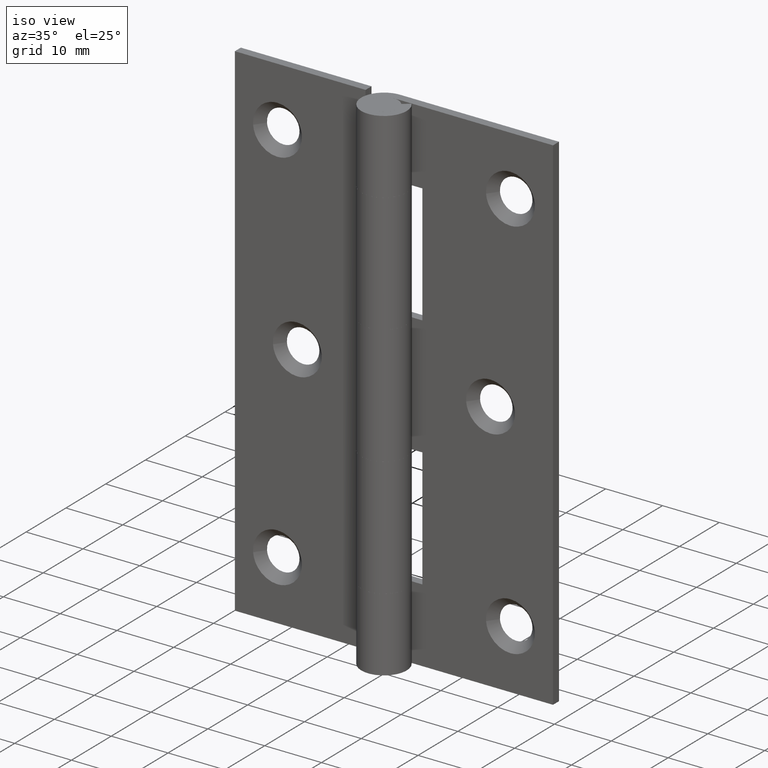
[diagram: clean part render]
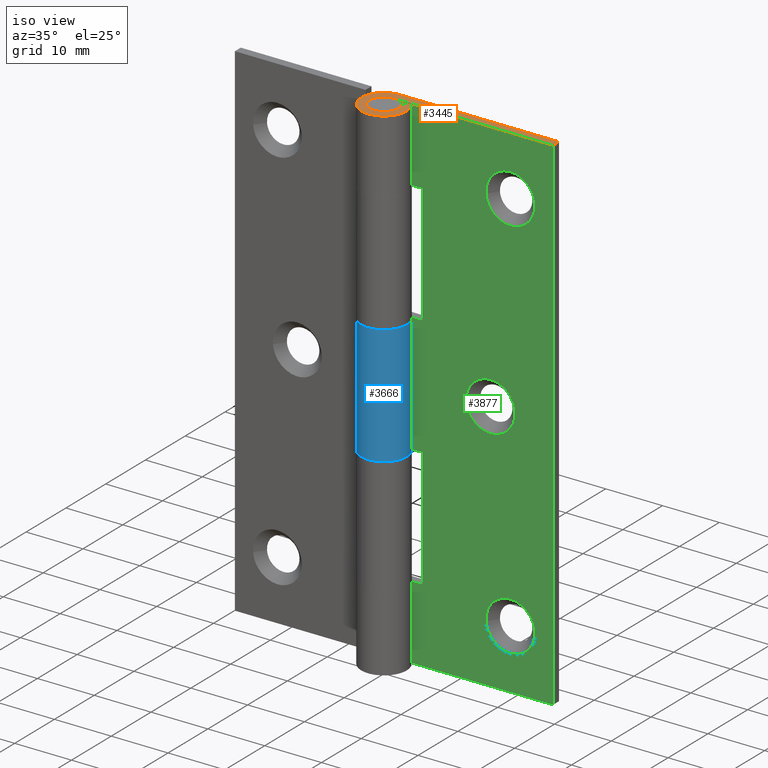
[diagram: same view with three faces highlighted in distinct colors, each labeled with its STEP entity id]
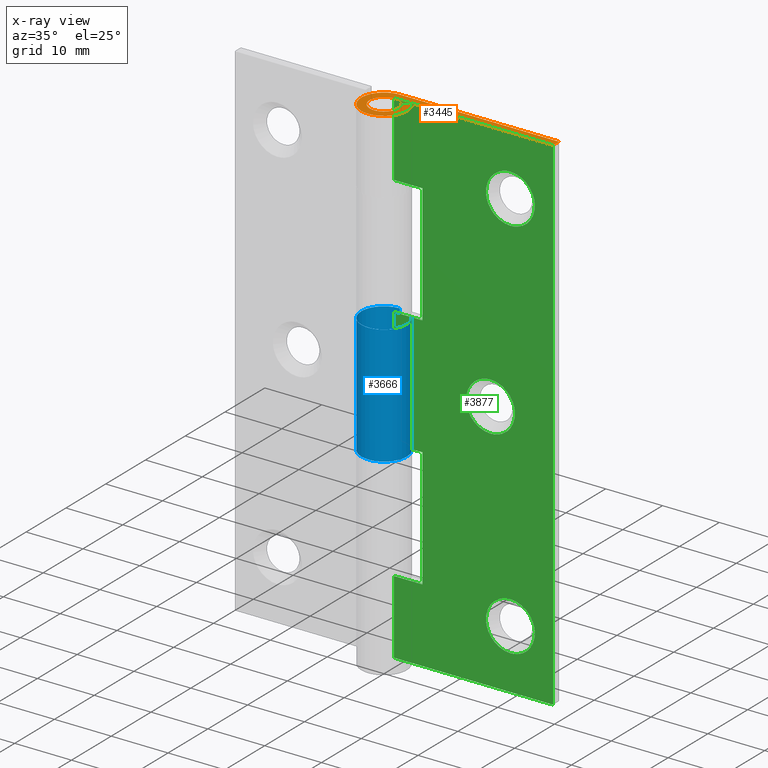
[diagram: x-ray of the same camera — body ghosted, the three highlighted faces saturated]
A machine part, iso view with three faces highlighted in distinct colors.
The next image is the same camera in x-ray (body ghosted, the three faces saturated) — at least one of them is partly hidden behind the body in this view.
Their STEP definitions:

[orange] entity #3445 — the highlighted face is a freeform B-spline surface patch.
#3368=CARTESIAN_POINT('',(-5.594925969266946,-4.385704570387422,89.000008000000008));
#3369=CARTESIAN_POINT('',(29.598235526677652,-4.385704570387422,89.000008000000008));
#3370=CARTESIAN_POINT('',(-5.594925969266946,4.398939142562097,89.000008000000008));
#3371=CARTESIAN_POINT('',(29.598235526677652,4.398939142562097,89.000008000000008));
#3372=B_SPLINE_SURFACE_WITH_KNOTS('',1,1,((#3368,#3370),(#3369,#3371)),.UNSPECIFIED.,.F.,.F.,.U.,(2,2),(2,2),(0.0,35.193161495944587),(0.0,8.784643712949519),.UNSPECIFIED.);
#3373=CARTESIAN_POINT('',(-4.592274E-016,2.500000000000000,89.000008000000008));
#3374=VERTEX_POINT('',#3373);
#3375=CARTESIAN_POINT('',(28.0,2.500000000000000,89.000008000000008));
#3376=VERTEX_POINT('',#3375);
#3377=CARTESIAN_POINT('',(-4.592274E-016,2.500000000000000,89.000008000000008));
#3378=CARTESIAN_POINT('',(28.0,2.500000000000000,89.000008000000008));
#3379=QUASI_UNIFORM_CURVE('',1,(#3377,#3378),.UNSPECIFIED.,.F.,.U.);
#3380=EDGE_CURVE('',#3374,#3376,#3379,.T.);
#3381=ORIENTED_EDGE('',*,*,#3380,.T.);
#3382=CARTESIAN_POINT('',(28.0,4.0,89.000008000000008));
#3383=VERTEX_POINT('',#3382);
#3384=CARTESIAN_POINT('',(28.0,2.500000000000000,89.000008000000008));
#3385=CARTESIAN_POINT('',(28.0,4.0,89.000008000000008));
#3386=QUASI_UNIFORM_CURVE('',1,(#3384,#3385),.UNSPECIFIED.,.F.,.U.);
#3387=EDGE_CURVE('',#3376,#3383,#3386,.T.);
#3388=ORIENTED_EDGE('',*,*,#3387,.T.);
#3389=CARTESIAN_POINT('',(3.552714E-015,4.0,89.000008000000008));
#3390=VERTEX_POINT('',#3389);
#3391=CARTESIAN_POINT('',(28.0,4.0,89.000008000000008));
#3392=CARTESIAN_POINT('',(3.552714E-015,4.0,89.000008000000008));
#3393=QUASI_UNIFORM_CURVE('',1,(#3391,#3392),.UNSPECIFIED.,.F.,.U.);
#3394=EDGE_CURVE('',#3383,#3390,#3393,.T.);
#3395=ORIENTED_EDGE('',*,*,#3394,.T.);
#3396=CARTESIAN_POINT('',(3.161882350752475,2.450000000000000,89.000008000000008));
#3397=VERTEX_POINT('',#3396);
#3398=CARTESIAN_POINT('',(3.161882350752474,2.450000000000002,89.000008000000008));
#3399=CARTESIAN_POINT('',(5.108698207643567,-0.062490897171015,89.000008000000008));
#3400=CARTESIAN_POINT('',(3.101007199225135,-2.526609259532207,89.000008000000008));
#3401=CARTESIAN_POINT('',(1.093316190806708,-4.990727621893395,89.000008000000008));
#3402=CARTESIAN_POINT('',(-1.760681686165899,-3.591656999213595,89.000008000000008));
#3403=CARTESIAN_POINT('',(-4.614679563138510,-2.192586376533794,89.000008000000008));
#3404=CARTESIAN_POINT('',(-3.896577215766061,0.903706811733105,89.000008000000008));
#3405=CARTESIAN_POINT('',(-3.178474868393613,4.0,89.000008000000008));
#3406=CARTESIAN_POINT('',(0.0,4.0,89.000008000000008));
#3414=(BOUNDED_CURVE()B_SPLINE_CURVE(2,(#3398,#3399,#3400,#3401,#3402,#3403,#3404,#3405,#3406),.UNSPECIFIED.,.F.,.U.)B_SPLINE_CURVE_WITH_KNOTS((3,2,2,2,3),(0.0,0.250000000000000,0.500000000000000,0.750000000000000,1.0),.UNSPECIFIED.)CURVE()GEOMETRIC_REPRESENTATION_ITEM()RATIONAL_B_SPLINE_CURVE((1.0,0.782919760554450,1.0,0.782919760554450,1.0,0.782919760554450,1.0,0.782919760554450,1.0))REPRESENTATION_ITEM(''));
#3415=EDGE_CURVE('',#3397,#3390,#3414,.T.);
#3416=ORIENTED_EDGE('',*,*,#3415,.F.);
#3417=CARTESIAN_POINT('',(1.976176469220295,1.531250000000000,89.000008000000008));
#3418=VERTEX_POINT('',#3417);
#3419=CARTESIAN_POINT('',(3.161882350752475,2.450000000000000,89.000008000000008));
#3420=CARTESIAN_POINT('',(1.976176469220295,1.531250000000000,89.000008000000008));
#3421=QUASI_UNIFORM_CURVE('',1,(#3419,#3420),.UNSPECIFIED.,.F.,.U.);
#3422=EDGE_CURVE('',#3397,#3418,#3421,.T.);
#3423=ORIENTED_EDGE('',*,*,#3422,.T.);
#3424=CARTESIAN_POINT('',(1.976176469220296,1.531250000000002,89.000008000000008));
#3425=CARTESIAN_POINT('',(3.192936379777227,-0.039056810731882,89.000008000000008));
#3426=CARTESIAN_POINT('',(1.938129499515711,-1.579130787207628,89.000008000000008));
#3427=CARTESIAN_POINT('',(0.683322619254193,-3.119204763683372,89.000008000000008));
#3428=CARTESIAN_POINT('',(-1.100426053853687,-2.244785624508497,89.000008000000008));
#3429=CARTESIAN_POINT('',(-2.884174726961570,-1.370366485333621,89.000008000000008));
#3430=CARTESIAN_POINT('',(-2.435360759853788,0.564816757333191,89.000008000000008));
#3431=CARTESIAN_POINT('',(-1.986546792746009,2.500000000000000,89.000008000000008));
#3432=CARTESIAN_POINT('',(0.0,2.500000000000000,89.000008000000008));
#3440=(BOUNDED_CURVE()B_SPLINE_CURVE(2,(#3424,#3425,#3426,#3427,#3428,#3429,#3430,#3431,#3432),.UNSPECIFIED.,.F.,.U.)B_SPLINE_CURVE_WITH_KNOTS((3,2,2,2,3),(0.0,0.250000000000000,0.500000000000000,0.750000000000000,1.0),.UNSPECIFIED.)CURVE()GEOMETRIC_REPRESENTATION_ITEM()RATIONAL_B_SPLINE_CURVE((1.0,0.782919760554450,1.0,0.782919760554450,1.0,0.782919760554450,1.0,0.782919760554450,1.0))REPRESENTATION_ITEM(''));
#3441=EDGE_CURVE('',#3418,#3374,#3440,.T.);
#3442=ORIENTED_EDGE('',*,*,#3441,.T.);
#3443=EDGE_LOOP('',(#3381,#3388,#3395,#3416,#3423,#3442));
#3444=FACE_OUTER_BOUND('',#3443,.T.);
#3445=ADVANCED_FACE('',(#3444),#3372,.T.);

[blue] entity #3666 — the highlighted face is a freeform B-spline surface patch.
#3058=CARTESIAN_POINT('',(0.0,4.0,55.000008000000001));
#3059=VERTEX_POINT('',#3058);
#3065=CARTESIAN_POINT('',(3.161882350752475,2.450000000000000,55.000008000000001));
#3066=VERTEX_POINT('',#3065);
#3067=CARTESIAN_POINT('',(0.0,4.0,55.000008000000001));
#3068=CARTESIAN_POINT('',(-3.178474868393613,4.0,55.000008000000001));
#3069=CARTESIAN_POINT('',(-3.896577215766061,0.903706811733104,55.000008000000001));
#3070=CARTESIAN_POINT('',(-4.614679563138508,-2.192586376533793,55.000008000000001));
#3071=CARTESIAN_POINT('',(-1.760681686165901,-3.591656999213595,55.000008000000001));
#3072=CARTESIAN_POINT('',(1.093316190806707,-4.990727621893397,55.000008000000001));
#3073=CARTESIAN_POINT('',(3.101007199225136,-2.526609259532206,55.000008000000001));
#3074=CARTESIAN_POINT('',(5.108698207643565,-0.062490897171015,55.000008000000001));
#3075=CARTESIAN_POINT('',(3.161882350752475,2.450000000000001,55.000008000000001));
#3083=(BOUNDED_CURVE()B_SPLINE_CURVE(2,(#3067,#3068,#3069,#3070,#3071,#3072,#3073,#3074,#3075),.UNSPECIFIED.,.F.,.U.)B_SPLINE_CURVE_WITH_KNOTS((3,2,2,2,3),(0.0,0.250000000000000,0.500000000000000,0.750000000000000,1.0),.UNSPECIFIED.)CURVE()GEOMETRIC_REPRESENTATION_ITEM()RATIONAL_B_SPLINE_CURVE((1.0,0.782919760554450,1.0,0.782919760554450,1.0,0.782919760554450,1.0,0.782919760554450,1.0))REPRESENTATION_ITEM(''));
#3084=EDGE_CURVE('',#3059,#3066,#3083,.T.);
#3331=CARTESIAN_POINT('',(3.161882350752475,2.450000000000000,34.000008000000037));
#3332=VERTEX_POINT('',#3331);
#3338=CARTESIAN_POINT('',(0.0,4.0,34.000008000000001));
#3339=VERTEX_POINT('',#3338);
#3340=CARTESIAN_POINT('',(0.0,4.0,34.000008000000037));
#3341=CARTESIAN_POINT('',(-3.178474868393613,4.0,34.000008000000037));
#3342=CARTESIAN_POINT('',(-3.896577215766061,0.903706811733104,34.000008000000037));
#3343=CARTESIAN_POINT('',(-4.614679563138508,-2.192586376533793,34.000008000000037));
#3344=CARTESIAN_POINT('',(-1.760681686165901,-3.591656999213595,34.000008000000037));
#3345=CARTESIAN_POINT('',(1.093316190806707,-4.990727621893397,34.000008000000037));
#3346=CARTESIAN_POINT('',(3.101007199225136,-2.526609259532206,34.000008000000037));
#3347=CARTESIAN_POINT('',(5.108698207643565,-0.062490897171015,34.000008000000037));
#3348=CARTESIAN_POINT('',(3.161882350752475,2.450000000000001,34.000008000000037));
#3356=(BOUNDED_CURVE()B_SPLINE_CURVE(2,(#3340,#3341,#3342,#3343,#3344,#3345,#3346,#3347,#3348),.UNSPECIFIED.,.F.,.U.)B_SPLINE_CURVE_WITH_KNOTS((3,2,2,2,3),(0.0,0.250000000000000,0.500000000000000,0.750000000000000,1.0),.UNSPECIFIED.)CURVE()GEOMETRIC_REPRESENTATION_ITEM()RATIONAL_B_SPLINE_CURVE((1.0,0.782919760554450,1.0,0.782919760554450,1.0,0.782919760554450,1.0,0.782919760554450,1.0))REPRESENTATION_ITEM(''));
#3357=EDGE_CURVE('',#3339,#3332,#3356,.T.);
#3630=CARTESIAN_POINT('',(3.086498333550879,2.544312881111055,33.475008000000003));
#3631=CARTESIAN_POINT('',(3.086498333550879,2.544312881111055,55.538133000000009));
#3632=CARTESIAN_POINT('',(6.382415685900924,-1.453954584762697,33.475008000000010));
#3633=CARTESIAN_POINT('',(6.382415685900924,-1.453954584762697,55.538133000000002));
#3634=CARTESIAN_POINT('',(1.679920539843638,-3.630133190368013,33.475008000000003));
#3635=CARTESIAN_POINT('',(1.679920539843638,-3.630133190368013,55.538133000000009));
#3636=CARTESIAN_POINT('',(-3.022574606213649,-5.806311795973331,33.475008000000010));
#3637=CARTESIAN_POINT('',(-3.022574606213649,-5.806311795973331,55.538133000000002));
#3638=CARTESIAN_POINT('',(-3.937193860527717,-0.706048514354957,33.475008000000003));
#3639=CARTESIAN_POINT('',(-3.937193860527717,-0.706048514354957,55.538133000000009));
#3640=CARTESIAN_POINT('',(-4.851813114841786,4.394214767263417,33.475008000000010));
#3641=CARTESIAN_POINT('',(-4.851813114841786,4.394214767263417,55.538133000000002));
#3642=CARTESIAN_POINT('',(0.313836382911379,3.987669334932511,33.475008000000003));
#3643=CARTESIAN_POINT('',(0.313836382911379,3.987669334932511,55.538133000000009));
#3651=(BOUNDED_SURFACE()B_SPLINE_SURFACE(1,2,((#3630,#3632,#3634,#3636,#3638,#3640,#3642),(#3631,#3633,#3635,#3637,#3639,#3641,#3643)),.UNSPECIFIED.,.F.,.F.,.U.)B_SPLINE_SURFACE_WITH_KNOTS((2,2),(3,2,2,3),(0.0,22.063125000000010),(0.0,7.861417130533329,15.722834261066660,23.584251391599992),.UNSPECIFIED.)GEOMETRIC_REPRESENTATION_ITEM()RATIONAL_B_SPLINE_SURFACE(((1.0,0.611066621529600,1.0,0.611066621529600,1.0,0.611066621529600,1.0),(1.0,0.611066621529600,1.0,0.611066621529600,1.0,0.611066621529600,1.0)))REPRESENTATION_ITEM('')SURFACE());
#3652=ORIENTED_EDGE('',*,*,#3084,.F.);
#3653=CARTESIAN_POINT('',(0.0,4.0,34.000008000000001));
#3654=CARTESIAN_POINT('',(0.0,4.0,55.000008000000001));
#3655=QUASI_UNIFORM_CURVE('',1,(#3653,#3654),.UNSPECIFIED.,.F.,.U.);
#3656=EDGE_CURVE('',#3339,#3059,#3655,.T.);
#3657=ORIENTED_EDGE('',*,*,#3656,.F.);
#3658=ORIENTED_EDGE('',*,*,#3357,.T.);
#3659=CARTESIAN_POINT('',(3.161882350752475,2.450000000000000,34.000008000000037));
#3660=CARTESIAN_POINT('',(3.161882350752475,2.450000000000000,55.000008000000001));
#3661=QUASI_UNIFORM_CURVE('',1,(#3659,#3660),.UNSPECIFIED.,.F.,.U.);
#3662=EDGE_CURVE('',#3332,#3066,#3661,.T.);
#3663=ORIENTED_EDGE('',*,*,#3662,.T.);
#3664=EDGE_LOOP('',(#3652,#3657,#3658,#3663));
#3665=FACE_OUTER_BOUND('',#3664,.T.);
#3666=ADVANCED_FACE('',(#3665),#3651,.T.);

[green] entity #3877 — the highlighted face is a freeform B-spline surface patch.
#2252=CARTESIAN_POINT('',(24.786744546982369,2.499999999884917,10.837374113450780));
#2253=VERTEX_POINT('',#2252);
#2259=CARTESIAN_POINT('',(20.500000000000000,2.500000000000000,14.800000011920931));
#2260=VERTEX_POINT('',#2259);
#2261=CARTESIAN_POINT('',(20.500000000000000,2.500000000000000,14.800000011920931));
#2262=CARTESIAN_POINT('',(24.474879123519010,2.500000000000000,14.800000011920931));
#2263=CARTESIAN_POINT('',(24.786744546982369,2.499999999884917,10.837374113450780));
#2271=(BOUNDED_CURVE()B_SPLINE_CURVE(2,(#2261,#2262,#2263),.UNSPECIFIED.,.F.,.U.)B_SPLINE_CURVE_WITH_KNOTS((3,3),(0.0,0.236331300562649),.UNSPECIFIED.)CURVE()GEOMETRIC_REPRESENTATION_ITEM()RATIONAL_B_SPLINE_CURVE((1.0,0.723120658687345,0.969723356025484))REPRESENTATION_ITEM(''));
#2272=EDGE_CURVE('',#2260,#2253,#2271,.T.);
#2274=CARTESIAN_POINT('',(16.213255453017641,2.499999999884916,10.162625886549220));
#2275=VERTEX_POINT('',#2274);
#2276=CARTESIAN_POINT('',(16.213255453017634,2.499999999884916,10.162625886549224));
#2277=CARTESIAN_POINT('',(16.199999988079071,2.500000000000000,10.331052538517870));
#2278=CARTESIAN_POINT('',(16.199999988079071,2.500000000000000,10.500000000000000));
#2279=CARTESIAN_POINT('',(16.199999988079067,2.500000000000000,14.800000011920924));
#2280=CARTESIAN_POINT('',(20.500000000000000,2.500000000000000,14.800000011920931));
#2288=(BOUNDED_CURVE()B_SPLINE_CURVE(2,(#2276,#2277,#2278,#2279,#2280),.UNSPECIFIED.,.F.,.U.)B_SPLINE_CURVE_WITH_KNOTS((3,2,3),(0.736331300562649,0.750000000000000,1.0),.UNSPECIFIED.)CURVE()GEOMETRIC_REPRESENTATION_ITEM()RATIONAL_B_SPLINE_CURVE((0.969723356025485,0.983986122499202,1.0,0.707106781186548,1.0))REPRESENTATION_ITEM(''));
#2289=EDGE_CURVE('',#2275,#2260,#2288,.T.);
#2326=CARTESIAN_POINT('',(20.500000000000000,2.500000000000000,6.199999988079070));
#2327=VERTEX_POINT('',#2326);
#2328=CARTESIAN_POINT('',(20.500000000000000,2.500000000000000,6.199999988079070));
#2329=CARTESIAN_POINT('',(16.525120876481001,2.500000000000000,6.199999988079071));
#2330=CARTESIAN_POINT('',(16.213255453017634,2.499999999884916,10.162625886549224));
#2338=(BOUNDED_CURVE()B_SPLINE_CURVE(2,(#2328,#2329,#2330),.UNSPECIFIED.,.F.,.U.)B_SPLINE_CURVE_WITH_KNOTS((3,3),(0.500000000000000,0.736331300562649),.UNSPECIFIED.)CURVE()GEOMETRIC_REPRESENTATION_ITEM()RATIONAL_B_SPLINE_CURVE((1.0,0.723120658687345,0.969723356025485))REPRESENTATION_ITEM(''));
#2339=EDGE_CURVE('',#2327,#2275,#2338,.T.);
#2341=CARTESIAN_POINT('',(24.786744546982369,2.499999999884917,10.837374113450780));
#2342=CARTESIAN_POINT('',(24.800000011920933,2.500000000000000,10.668947461482130));
#2343=CARTESIAN_POINT('',(24.800000011920929,2.500000000000000,10.500000000000000));
#2344=CARTESIAN_POINT('',(24.800000011920929,2.500000000000000,6.199999988079070));
#2345=CARTESIAN_POINT('',(20.500000000000000,2.500000000000000,6.199999988079070));
#2353=(BOUNDED_CURVE()B_SPLINE_CURVE(2,(#2341,#2342,#2343,#2344,#2345),.UNSPECIFIED.,.F.,.U.)B_SPLINE_CURVE_WITH_KNOTS((3,2,3),(0.236331300562649,0.250000000000000,0.500000000000000),.UNSPECIFIED.)CURVE()GEOMETRIC_REPRESENTATION_ITEM()RATIONAL_B_SPLINE_CURVE((0.969723356025484,0.983986122499202,1.0,0.707106781186548,1.0))REPRESENTATION_ITEM(''));
#2354=EDGE_CURVE('',#2253,#2327,#2353,.T.);
#2580=CARTESIAN_POINT('',(21.286744546982359,2.499999999884915,44.837382113450772));
#2581=VERTEX_POINT('',#2580);
#2587=CARTESIAN_POINT('',(17.0,2.500000000000000,48.800008011920930));
#2588=VERTEX_POINT('',#2587);
#2589=CARTESIAN_POINT('',(17.0,2.500000000000000,48.800008011920930));
#2590=CARTESIAN_POINT('',(20.974879123519024,2.500000000000000,48.800008011920923));
#2591=CARTESIAN_POINT('',(21.286744546982362,2.499999999884915,44.837382113450779));
#2599=(BOUNDED_CURVE()B_SPLINE_CURVE(2,(#2589,#2590,#2591),.UNSPECIFIED.,.F.,.U.)B_SPLINE_CURVE_WITH_KNOTS((3,3),(0.0,0.236331300562649),.UNSPECIFIED.)CURVE()GEOMETRIC_REPRESENTATION_ITEM()RATIONAL_B_SPLINE_CURVE((1.0,0.723120658687345,0.969723356025485))REPRESENTATION_ITEM(''));
#2600=EDGE_CURVE('',#2588,#2581,#2599,.T.);
#2602=CARTESIAN_POINT('',(12.713255453017640,2.499999999884916,44.162633886549230));
#2603=VERTEX_POINT('',#2602);
#2604=CARTESIAN_POINT('',(12.713255453017641,2.499999999884916,44.162633886549230));
#2605=CARTESIAN_POINT('',(12.699999988079067,2.500000000000000,44.331060538517875));
#2606=CARTESIAN_POINT('',(12.699999988079069,2.500000000000000,44.500008000000001));
#2607=CARTESIAN_POINT('',(12.699999988079069,2.500000000000000,48.800008011920923));
#2608=CARTESIAN_POINT('',(17.0,2.500000000000000,48.800008011920930));
#2616=(BOUNDED_CURVE()B_SPLINE_CURVE(2,(#2604,#2605,#2606,#2607,#2608),.UNSPECIFIED.,.F.,.U.)B_SPLINE_CURVE_WITH_KNOTS((3,2,3),(0.736331300562649,0.750000000000000,1.0),.UNSPECIFIED.)CURVE()GEOMETRIC_REPRESENTATION_ITEM()RATIONAL_B_SPLINE_CURVE((0.969723356025485,0.983986122499202,1.0,0.707106781186548,1.0))REPRESENTATION_ITEM(''));
#2617=EDGE_CURVE('',#2603,#2588,#2616,.T.);
#2654=CARTESIAN_POINT('',(17.0,2.500000000000000,40.200007988079072));
#2655=VERTEX_POINT('',#2654);
#2656=CARTESIAN_POINT('',(17.0,2.500000000000000,40.200007988079072));
#2657=CARTESIAN_POINT('',(13.025120876480994,2.500000000000000,40.200007988079079));
#2658=CARTESIAN_POINT('',(12.713255453017632,2.499999999884916,44.162633886549230));
#2666=(BOUNDED_CURVE()B_SPLINE_CURVE(2,(#2656,#2657,#2658),.UNSPECIFIED.,.F.,.U.)B_SPLINE_CURVE_WITH_KNOTS((3,3),(0.500000000000000,0.736331300562649),.UNSPECIFIED.)CURVE()GEOMETRIC_REPRESENTATION_ITEM()RATIONAL_B_SPLINE_CURVE((1.0,0.723120658687345,0.969723356025485))REPRESENTATION_ITEM(''));
#2667=EDGE_CURVE('',#2655,#2603,#2666,.T.);
#2669=CARTESIAN_POINT('',(21.286744546982359,2.499999999884916,44.837382113450772));
#2670=CARTESIAN_POINT('',(21.300000011920933,2.500000000000000,44.668955461482135));
#2671=CARTESIAN_POINT('',(21.300000011920929,2.500000000000000,44.500008000000001));
#2672=CARTESIAN_POINT('',(21.300000011920940,2.500000000000000,40.200007988079065));
#2673=CARTESIAN_POINT('',(17.0,2.500000000000000,40.200007988079072));
#2681=(BOUNDED_CURVE()B_SPLINE_CURVE(2,(#2669,#2670,#2671,#2672,#2673),.UNSPECIFIED.,.F.,.U.)B_SPLINE_CURVE_WITH_KNOTS((3,2,3),(0.236331300562649,0.250000000000000,0.500000000000000),.UNSPECIFIED.)CURVE()GEOMETRIC_REPRESENTATION_ITEM()RATIONAL_B_SPLINE_CURVE((0.969723356025485,0.983986122499203,1.0,0.707106781186548,1.0))REPRESENTATION_ITEM(''));
#2682=EDGE_CURVE('',#2581,#2655,#2681,.T.);
#2908=CARTESIAN_POINT('',(24.786744546982359,2.499999999884916,78.837382113450786));
#2909=VERTEX_POINT('',#2908);
#2915=CARTESIAN_POINT('',(20.500000000000000,2.500000000000000,82.800008011920937));
#2916=VERTEX_POINT('',#2915);
#2917=CARTESIAN_POINT('',(20.500000000000000,2.500000000000000,82.800008011920937));
#2918=CARTESIAN_POINT('',(24.474879123518985,2.500000000000000,82.800008011920937));
#2919=CARTESIAN_POINT('',(24.786744546982359,2.499999999884916,78.837382113450786));
#2927=(BOUNDED_CURVE()B_SPLINE_CURVE(2,(#2917,#2918,#2919),.UNSPECIFIED.,.F.,.U.)B_SPLINE_CURVE_WITH_KNOTS((3,3),(0.0,0.236331300562648),.UNSPECIFIED.)CURVE()GEOMETRIC_REPRESENTATION_ITEM()RATIONAL_B_SPLINE_CURVE((1.0,0.723120658687346,0.969723356025483))REPRESENTATION_ITEM(''));
#2928=EDGE_CURVE('',#2916,#2909,#2927,.T.);
#2930=CARTESIAN_POINT('',(16.213255453017641,2.499999999884916,78.162633886549202));
#2931=VERTEX_POINT('',#2930);
#2932=CARTESIAN_POINT('',(16.213255453017634,2.499999999884917,78.162633886549202));
#2933=CARTESIAN_POINT('',(16.199999988079075,2.500000000000000,78.331060538517860));
#2934=CARTESIAN_POINT('',(16.199999988079071,2.500000000000000,78.500007999999994));
#2935=CARTESIAN_POINT('',(16.199999988079067,2.500000000000000,82.800008011920923));
#2936=CARTESIAN_POINT('',(20.500000000000000,2.500000000000000,82.800008011920937));
#2944=(BOUNDED_CURVE()B_SPLINE_CURVE(2,(#2932,#2933,#2934,#2935,#2936),.UNSPECIFIED.,.F.,.U.)B_SPLINE_CURVE_WITH_KNOTS((3,2,3),(0.736331300562649,0.750000000000000,1.0),.UNSPECIFIED.)CURVE()GEOMETRIC_REPRESENTATION_ITEM()RATIONAL_B_SPLINE_CURVE((0.969723356025484,0.983986122499202,1.0,0.707106781186548,1.0))REPRESENTATION_ITEM(''));
#2945=EDGE_CURVE('',#2931,#2916,#2944,.T.);
#2982=CARTESIAN_POINT('',(20.500000000000000,2.500000000000000,74.200007988079065));
#2983=VERTEX_POINT('',#2982);
#2984=CARTESIAN_POINT('',(20.500000000000000,2.500000000000000,74.200007988079065));
#2985=CARTESIAN_POINT('',(16.525120876481001,2.500000000000000,74.200007988079065));
#2986=CARTESIAN_POINT('',(16.213255453017634,2.499999999884916,78.162633886549202));
#2994=(BOUNDED_CURVE()B_SPLINE_CURVE(2,(#2984,#2985,#2986),.UNSPECIFIED.,.F.,.U.)B_SPLINE_CURVE_WITH_KNOTS((3,3),(0.500000000000000,0.736331300562649),.UNSPECIFIED.)CURVE()GEOMETRIC_REPRESENTATION_ITEM()RATIONAL_B_SPLINE_CURVE((1.0,0.723120658687345,0.969723356025485))REPRESENTATION_ITEM(''));
#2995=EDGE_CURVE('',#2983,#2931,#2994,.T.);
#2997=CARTESIAN_POINT('',(24.786744546982359,2.499999999884916,78.837382113450786));
#2998=CARTESIAN_POINT('',(24.800000011920929,2.500000000000000,78.668955461482142));
#2999=CARTESIAN_POINT('',(24.800000011920929,2.500000000000000,78.500007999999994));
#3000=CARTESIAN_POINT('',(24.800000011920929,2.500000000000000,74.200007988079051));
#3001=CARTESIAN_POINT('',(20.500000000000000,2.500000000000000,74.200007988079065));
#3009=(BOUNDED_CURVE()B_SPLINE_CURVE(2,(#2997,#2998,#2999,#3000,#3001),.UNSPECIFIED.,.F.,.U.)B_SPLINE_CURVE_WITH_KNOTS((3,2,3),(0.236331300562648,0.250000000000000,0.500000000000000),.UNSPECIFIED.)CURVE()GEOMETRIC_REPRESENTATION_ITEM()RATIONAL_B_SPLINE_CURVE((0.969723356025483,0.983986122499202,1.0,0.707106781186548,1.0))REPRESENTATION_ITEM(''));
#3010=EDGE_CURVE('',#2909,#2983,#3009,.T.);
#3023=CARTESIAN_POINT('',(5.0,2.499999999999945,76.000007999999994));
#3024=VERTEX_POINT('',#3023);
#3037=CARTESIAN_POINT('',(5.0,2.499999999999945,55.000008000000001));
#3038=VERTEX_POINT('',#3037);
#3044=CARTESIAN_POINT('',(5.0,2.499999999999945,76.000007999999994));
#3045=CARTESIAN_POINT('',(5.0,2.499999999999945,55.000008000000001));
#3046=QUASI_UNIFORM_CURVE('',1,(#3044,#3045),.UNSPECIFIED.,.F.,.U.);
#3047=EDGE_CURVE('',#3024,#3038,#3046,.T.);
#3093=CARTESIAN_POINT('',(-4.592274E-016,2.500000000000000,55.000008000000001));
#3094=VERTEX_POINT('',#3093);
#3114=CARTESIAN_POINT('',(5.0,2.499999999999945,55.000008000000001));
#3115=CARTESIAN_POINT('',(-4.592274E-016,2.500000000000000,55.000008000000001));
#3116=QUASI_UNIFORM_CURVE('',1,(#3114,#3115),.UNSPECIFIED.,.F.,.U.);
#3117=EDGE_CURVE('',#3038,#3094,#3116,.T.);
#3129=CARTESIAN_POINT('',(-4.592274E-016,2.500000000000000,76.000008000000093));
#3130=VERTEX_POINT('',#3129);
#3184=CARTESIAN_POINT('',(-4.592274E-016,2.500000000000000,76.000008000000093));
#3185=CARTESIAN_POINT('',(5.0,2.499999999999945,76.000007999999994));
#3186=QUASI_UNIFORM_CURVE('',1,(#3184,#3185),.UNSPECIFIED.,.F.,.U.);
#3187=EDGE_CURVE('',#3130,#3024,#3186,.T.);
#3197=CARTESIAN_POINT('',(5.0,2.499999999999945,13.0));
#3198=VERTEX_POINT('',#3197);
#3199=CARTESIAN_POINT('',(5.0,2.499999999999945,34.000008000000001));
#3200=VERTEX_POINT('',#3199);
#3201=CARTESIAN_POINT('',(5.0,2.499999999999945,13.0));
#3202=CARTESIAN_POINT('',(5.0,2.499999999999945,34.000008000000001));
#3203=QUASI_UNIFORM_CURVE('',1,(#3201,#3202),.UNSPECIFIED.,.F.,.U.);
#3204=EDGE_CURVE('',#3198,#3200,#3203,.T.);
#3263=CARTESIAN_POINT('',(-4.592274E-016,2.500000000000000,13.0));
#3264=VERTEX_POINT('',#3263);
#3284=CARTESIAN_POINT('',(-4.592274E-016,2.500000000000000,13.0));
#3285=CARTESIAN_POINT('',(5.0,2.499999999999945,13.0));
#3286=QUASI_UNIFORM_CURVE('',1,(#3284,#3285),.UNSPECIFIED.,.F.,.U.);
#3287=EDGE_CURVE('',#3264,#3198,#3286,.T.);
#3303=CARTESIAN_POINT('',(-4.592274E-016,2.500000000000000,34.000008000000037));
#3304=VERTEX_POINT('',#3303);
#3305=CARTESIAN_POINT('',(5.0,2.499999999999945,34.000008000000001));
#3306=CARTESIAN_POINT('',(-4.592274E-016,2.500000000000000,34.000008000000037));
#3307=QUASI_UNIFORM_CURVE('',1,(#3305,#3306),.UNSPECIFIED.,.F.,.U.);
#3308=EDGE_CURVE('',#3200,#3304,#3307,.T.);
#3373=CARTESIAN_POINT('',(-4.592274E-016,2.500000000000000,89.000008000000008));
#3374=VERTEX_POINT('',#3373);
#3375=CARTESIAN_POINT('',(28.0,2.500000000000000,89.000008000000008));
#3376=VERTEX_POINT('',#3375);
#3377=CARTESIAN_POINT('',(-4.592274E-016,2.500000000000000,89.000008000000008));
#3378=CARTESIAN_POINT('',(28.0,2.500000000000000,89.000008000000008));
#3379=QUASI_UNIFORM_CURVE('',1,(#3377,#3378),.UNSPECIFIED.,.F.,.U.);
#3380=EDGE_CURVE('',#3374,#3376,#3379,.T.);
#3451=CARTESIAN_POINT('',(-4.592274E-016,2.500000000000000,0.0));
#3452=VERTEX_POINT('',#3451);
#3453=CARTESIAN_POINT('',(28.0,2.500000000000000,0.0));
#3454=VERTEX_POINT('',#3453);
#3455=CARTESIAN_POINT('',(-4.592274E-016,2.500000000000000,0.0));
#3456=CARTESIAN_POINT('',(28.0,2.500000000000000,0.0));
#3457=QUASI_UNIFORM_CURVE('',1,(#3455,#3456),.UNSPECIFIED.,.F.,.U.);
#3458=EDGE_CURVE('',#3452,#3454,#3457,.T.);
#3553=CARTESIAN_POINT('',(-4.592274E-016,2.500000000000000,0.0));
#3554=CARTESIAN_POINT('',(-4.592274E-016,2.500000000000000,13.0));
#3555=QUASI_UNIFORM_CURVE('',1,(#3553,#3554),.UNSPECIFIED.,.F.,.U.);
#3556=EDGE_CURVE('',#3452,#3264,#3555,.T.);
#3583=CARTESIAN_POINT('',(28.0,2.500000000000000,0.0));
#3584=CARTESIAN_POINT('',(28.0,2.500000000000000,89.000008000000008));
#3585=QUASI_UNIFORM_CURVE('',1,(#3583,#3584),.UNSPECIFIED.,.F.,.U.);
#3586=EDGE_CURVE('',#3454,#3376,#3585,.T.);
#3726=CARTESIAN_POINT('',(-4.592274E-016,2.500000000000000,34.000008000000037));
#3727=CARTESIAN_POINT('',(-4.592274E-016,2.500000000000000,55.000008000000001));
#3728=QUASI_UNIFORM_CURVE('',1,(#3726,#3727),.UNSPECIFIED.,.F.,.U.);
#3729=EDGE_CURVE('',#3304,#3094,#3728,.T.);
#3769=CARTESIAN_POINT('',(-4.592274E-016,2.500000000000000,76.000008000000093));
#3770=CARTESIAN_POINT('',(-4.592274E-016,2.500000000000000,89.000008000000008));
#3771=QUASI_UNIFORM_CURVE('',1,(#3769,#3770),.UNSPECIFIED.,.F.,.U.);
#3772=EDGE_CURVE('',#3130,#3374,#3771,.T.);
#3840=CARTESIAN_POINT('',(-1.398599945730568,2.500000000000000,93.445558227100719));
#3841=CARTESIAN_POINT('',(-1.398599945730568,2.500000000000000,-4.445552614266954));
#3842=CARTESIAN_POINT('',(29.398600696749099,2.500000000000000,93.445558227100719));
#3843=CARTESIAN_POINT('',(29.398600696749099,2.500000000000000,-4.445552614266954));
#3844=B_SPLINE_SURFACE_WITH_KNOTS('',1,1,((#3840,#3842),(#3841,#3843)),.UNSPECIFIED.,.F.,.F.,.U.,(2,2),(2,2),(0.0,97.891110841367677),(0.0,30.797200642479659),.UNSPECIFIED.);
#3845=ORIENTED_EDGE('',*,*,#3772,.F.);
#3846=ORIENTED_EDGE('',*,*,#3187,.T.);
#3847=ORIENTED_EDGE('',*,*,#3047,.T.);
#3848=ORIENTED_EDGE('',*,*,#3117,.T.);
#3849=ORIENTED_EDGE('',*,*,#3729,.F.);
#3850=ORIENTED_EDGE('',*,*,#3308,.F.);
#3851=ORIENTED_EDGE('',*,*,#3204,.F.);
#3852=ORIENTED_EDGE('',*,*,#3287,.F.);
#3853=ORIENTED_EDGE('',*,*,#3556,.F.);
#3854=ORIENTED_EDGE('',*,*,#3458,.T.);
#3855=ORIENTED_EDGE('',*,*,#3586,.T.);
#3856=ORIENTED_EDGE('',*,*,#3380,.F.);
#3857=EDGE_LOOP('',(#3845,#3846,#3847,#3848,#3849,#3850,#3851,#3852,#3853,#3854,#3855,#3856));
#3858=FACE_OUTER_BOUND('',#3857,.T.);
#3859=ORIENTED_EDGE('',*,*,#2995,.T.);
#3860=ORIENTED_EDGE('',*,*,#2945,.T.);
#3861=ORIENTED_EDGE('',*,*,#2928,.T.);
#3862=ORIENTED_EDGE('',*,*,#3010,.T.);
#3863=EDGE_LOOP('',(#3859,#3860,#3861,#3862));
#3864=FACE_BOUND('',#3863,.T.);
#3865=ORIENTED_EDGE('',*,*,#2667,.T.);
#3866=ORIENTED_EDGE('',*,*,#2617,.T.);
#3867=ORIENTED_EDGE('',*,*,#2600,.T.);
#3868=ORIENTED_EDGE('',*,*,#2682,.T.);
#3869=EDGE_LOOP('',(#3865,#3866,#3867,#3868));
#3870=FACE_BOUND('',#3869,.T.);
#3871=ORIENTED_EDGE('',*,*,#2339,.T.);
#3872=ORIENTED_EDGE('',*,*,#2289,.T.);
#3873=ORIENTED_EDGE('',*,*,#2272,.T.);
#3874=ORIENTED_EDGE('',*,*,#2354,.T.);
#3875=EDGE_LOOP('',(#3871,#3872,#3873,#3874));
#3876=FACE_BOUND('',#3875,.T.);
#3877=ADVANCED_FACE('',(#3858,#3864,#3870,#3876),#3844,.T.);